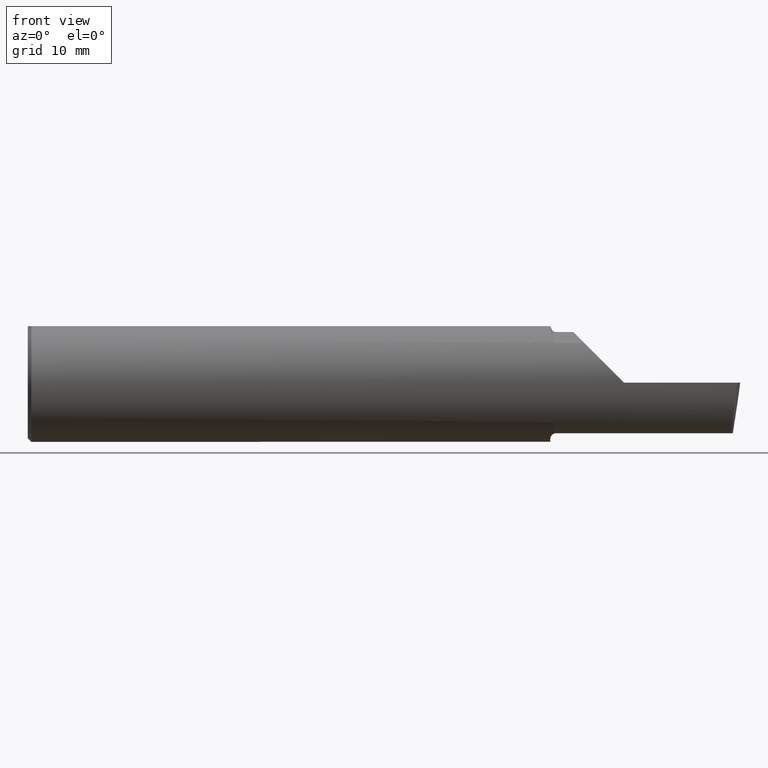
[diagram: clean part render]
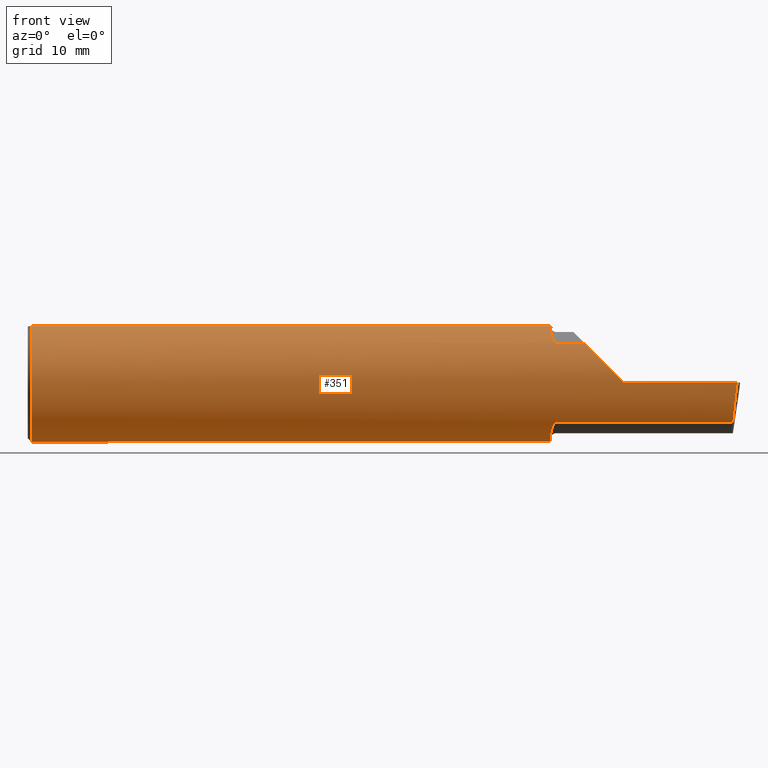
[diagram: same view with one face highlighted and labeled with its STEP entity id]
A machine part, front view. The second image highlights one B-rep face of the part: STEP entity #351.
In plain terms, the highlighted cylindrical surface (partial cylindrical patch) has radius 6.3462 mm, axis along (-1, -0, -0).
Its self-contained STEP definition (entity closure, byte-faithful):
#7 = CARTESIAN_POINT ( 'NONE',  ( 2.200000000000000178, 0.07650098038587503646, 0.2378500000000000059 ) ) ;
#11 = CARTESIAN_POINT ( 'NONE',  ( 2.200000000000000178, -0.07650098038590467941, 0.2378500000000000059 ) ) ;
#12 = CARTESIAN_POINT ( 'NONE',  ( 2.207341173198634543, -0.1582250006961558320, -0.1936724403215128454 ) ) ;
#16 = VERTEX_POINT ( 'NONE', #105 ) ;
#19 = CARTESIAN_POINT ( 'NONE',  ( 2.220138573936400128, -0.1849738682364328035, -0.1679602226613253479 ) ) ;
#32 = AXIS2_PLACEMENT_3D ( 'NONE', #425, #54, #482 ) ;
#37 = CARTESIAN_POINT ( 'NONE',  ( 2.207343635746627175, -0.1582230848692695868, 0.1936715022401950259 ) ) ;
#39 = ORIENTED_EDGE ( 'NONE', *, *, #406, .F. ) ;
#41 = EDGE_CURVE ( 'NONE', #536, #362, #762, .T. ) ;
#52 = CARTESIAN_POINT ( 'NONE',  ( 2.225000000000000089, -0.1868028301886793530, -0.1659208399614086893 ) ) ;
#54 = DIRECTION ( 'NONE',  ( 1.000000000000000000, 0.0000000000000000000, 0.0000000000000000000 ) ) ;
#55 = ORIENTED_EDGE ( 'NONE', *, *, #717, .F. ) ;
#60 = CARTESIAN_POINT ( 'NONE',  ( 2.200000000000000178, -0.08036415094339657839, 0.2365726648265749632 ) ) ;
#70 = VERTEX_POINT ( 'NONE', #359 ) ;
#74 = EDGE_CURVE ( 'NONE', #628, #114, #247, .T. ) ;
#78 = CARTESIAN_POINT ( 'NONE',  ( 2.201227564404962589, -0.1217005943024293546, -0.2193523119135138422 ) ) ;
#81 = CARTESIAN_POINT ( 'NONE',  ( 0.01499999999999999771, 0.07650098038587500870, 0.2378499999999999226 ) ) ;
#82 = CARTESIAN_POINT ( 'NONE',  ( 2.215875558094659414, -0.1799506819598038487, -0.1733486322212181296 ) ) ;
#85 = VECTOR ( 'NONE', #230, 39.37007874015748143 ) ;
#87 = ORIENTED_EDGE ( 'NONE', *, *, #241, .T. ) ;
#95 = ORIENTED_EDGE ( 'NONE', *, *, #203, .F. ) ;
#97 = CARTESIAN_POINT ( 'NONE',  ( 2.225000000000000089, -0.1868028301886792142, 0.1659208399614088003 ) ) ;
#98 = B_SPLINE_CURVE_WITH_KNOTS ( 'NONE', 3,
 ( #162, #287, #691, #348, #749, #412, #37, #466, #102, #522, #164, #590, #223, #636, #290, #698 ),
 .UNSPECIFIED., .F., .F.,
 ( 4, 2, 2, 2, 2, 2, 2, 4 ),
 ( 0.0001034694911878116782, 0.0009591263138367388556, 0.001814783136485666019, 0.002670439959134593075, 0.003098268370459054868, 0.003312182576121287716, 0.003419139678952397635, 0.003526096781783507987 ),
 .UNSPECIFIED. ) ;
#99 = CARTESIAN_POINT ( 'NONE',  ( 0.01499999999999999771, 0.0000000000000000000, 0.0000000000000000000 ) ) ;
#101 = CARTESIAN_POINT ( 'NONE',  ( 2.510000000000000231, -0.2498499999999999610, 6.000769315822035917E-17 ) ) ;
#102 = CARTESIAN_POINT ( 'NONE',  ( 2.212758562425229947, -0.1743135686468865742, 0.1790760091940043208 ) ) ;
#105 = CARTESIAN_POINT ( 'NONE',  ( 0.01499999999998188026, -0.07650098038590467941, 0.2378500000000000059 ) ) ;
#114 = VERTEX_POINT ( 'NONE', #301 ) ;
#115 = EDGE_CURVE ( 'NONE', #389, #705, #678, .T. ) ;
#127 = AXIS2_PLACEMENT_3D ( 'NONE', #201, #575, #209 ) ;
#129 = CIRCLE ( 'NONE', #127, 0.2498499999999999888 ) ;
#139 = CARTESIAN_POINT ( 'NONE',  ( 0.0000000000000000000, -0.07650098038587496707, 0.2378499999999999226 ) ) ;
#140 = CARTESIAN_POINT ( 'NONE',  ( 2.222232603162240139, -0.1862758070845873526, -0.1665151405181427013 ) ) ;
#141 = CARTESIAN_POINT ( 'NONE',  ( 2.212797058507744996, -0.1743943839926586914, -0.1789958554125698764 ) ) ;
#147 = VECTOR ( 'NONE', #551, 39.37007874015748143 ) ;
#152 = LINE ( 'NONE', #139, #303 ) ;
#156 = ORIENTED_EDGE ( 'NONE', *, *, #74, .F. ) ;
#161 = DIRECTION ( 'NONE',  ( 0.0000000000000000000, 0.0000000000000000000, 1.000000000000000000 ) ) ;
#162 = CARTESIAN_POINT ( 'NONE',  ( 2.200000000000000178, -0.08036415094339657839, 0.2365726648265749632 ) ) ;
#164 = CARTESIAN_POINT ( 'NONE',  ( 2.217018584423771976, -0.1817363555988614210, 0.1714722504633805766 ) ) ;
#177 = AXIS2_PLACEMENT_3D ( 'NONE', #99, #516, #161 ) ;
#178 = EDGE_LOOP ( 'NONE', ( #55, #605, #275, #497, #156, #566, #525, #87, #39, #398, #688, #460, #95 ) ) ;
#181 = CARTESIAN_POINT ( 'NONE',  ( 2.510000000000000231, -0.2498499999999999610, 6.000769315822035917E-17 ) ) ;
#188 = CIRCLE ( 'NONE', #177, 0.2498499999999999888 ) ;
#197 = EDGE_CURVE ( 'NONE', #70, #439, #626, .T. ) ;
#199 = EDGE_CURVE ( 'NONE', #664, #70, #730, .T. ) ;
#201 = CARTESIAN_POINT ( 'NONE',  ( 0.01499999999999999771, 0.0000000000000000000, 0.0000000000000000000 ) ) ;
#203 = EDGE_CURVE ( 'NONE', #502, #536, #695, .T. ) ;
#208 = CARTESIAN_POINT ( 'NONE',  ( 2.199999999999990408, -0.1016924291521889567, -0.2293274111511741375 ) ) ;
#209 = DIRECTION ( 'NONE',  ( 0.0000000000000000000, 0.0000000000000000000, 1.000000000000000000 ) ) ;
#219 = CARTESIAN_POINT ( 'NONE',  ( 2.968492717492762889, -0.1868028301886794917, -0.1659208399614086338 ) ) ;
#223 = CARTESIAN_POINT ( 'NONE',  ( 2.220144309637440472, -0.1849788583324331048, 0.1679547276881069029 ) ) ;
#230 = DIRECTION ( 'NONE',  ( 1.000000000000000000, 0.0000000000000000000, 0.0000000000000000000 ) ) ;
#241 = EDGE_CURVE ( 'NONE', #389, #16, #152, .T. ) ;
#244 = VERTEX_POINT ( 'NONE', #81 ) ;
#247 = LINE ( 'NONE', #754, #85 ) ;
#254 = DIRECTION ( 'NONE',  ( -1.000000000000000000, -0.0000000000000000000, -0.0000000000000000000 ) ) ;
#256 = LINE ( 'NONE', #702, #147 ) ;
#259 = AXIS2_PLACEMENT_3D ( 'NONE', #432, #254, #663 ) ;
#266 = CARTESIAN_POINT ( 'NONE',  ( 2.987221270274242446, -0.2498499999999999888, -6.495015745097940340E-17 ) ) ;
#275 = ORIENTED_EDGE ( 'NONE', *, *, #197, .T. ) ;
#287 = CARTESIAN_POINT ( 'NONE',  ( 2.199999999999999734, -0.09104204635388178646, 0.2329453649474654831 ) ) ;
#290 = CARTESIAN_POINT ( 'NONE',  ( 2.223548866468135543, -0.1868028301907316557, 0.1659208399590982042 ) ) ;
#293 = DIRECTION ( 'NONE',  ( 1.000000000000000000, 0.0000000000000000000, 0.0000000000000000000 ) ) ;
#301 = CARTESIAN_POINT ( 'NONE',  ( 2.344079160038586185, -0.1868028301886760500, 0.1659208399614119644 ) ) ;
#303 = VECTOR ( 'NONE', #673, 39.37007874015748143 ) ;
#310 = CARTESIAN_POINT ( 'NONE',  ( 2.344079160038586185, -0.1868028301886760500, 0.1659208399614119644 ) ) ;
#316 = LINE ( 'NONE', #457, #758 ) ;
#323 = EDGE_CURVE ( 'NONE', #439, #114, #648, .T. ) ;
#348 = CARTESIAN_POINT ( 'NONE',  ( 2.201680550596498698, -0.1214972057705729497, 0.2186080375779522744 ) ) ;
#351 = ADVANCED_FACE ( 'NONE', ( #677 ), #374, .T. ) ;
#359 = CARTESIAN_POINT ( 'NONE',  ( 2.987221270274242446, -0.2498499999999999888, -6.495015745097940340E-17 ) ) ;
#362 = VERTEX_POINT ( 'NONE', #7 ) ;
#371 = CARTESIAN_POINT ( 'NONE',  ( 2.448145753305722927, -0.2498500000000000165, 0.06185424669427665861 ) ) ;
#374 = CYLINDRICAL_SURFACE ( 'NONE', #259, 0.2498499999999999888 ) ;
#386 = VERTEX_POINT ( 'NONE', #559 ) ;
#389 = VERTEX_POINT ( 'NONE', #11 ) ;
#392 = CARTESIAN_POINT ( 'NONE',  ( 2.973097331270539989, -0.2278791102234774824, -0.1196748990301325366 ) ) ;
#396 = CARTESIAN_POINT ( 'NONE',  ( 2.211285743882607679, -0.1704402150608115285, -0.1827701868778697503 ) ) ;
#398 = ORIENTED_EDGE ( 'NONE', *, *, #515, .F. ) ;
#399 = CARTESIAN_POINT ( 'NONE',  ( 2.200000000000000178, -0.08036415094339657839, -0.2365726648265749632 ) ) ;
#401 = DIRECTION ( 'NONE',  ( 1.000000000000000000, 0.0000000000000000000, 0.0000000000000000000 ) ) ;
#406 = EDGE_CURVE ( 'NONE', #386, #16, #188, .T. ) ;
#412 = CARTESIAN_POINT ( 'NONE',  ( 2.205553274544308717, -0.1495649063853947414, 0.2004446339470383753 ) ) ;
#425 = CARTESIAN_POINT ( 'NONE',  ( 2.200000000000000178, 0.0000000000000000000, 0.0000000000000000000 ) ) ;
#432 = CARTESIAN_POINT ( 'NONE',  ( 0.0000000000000000000, 0.0000000000000000000, 0.0000000000000000000 ) ) ;
#439 = VERTEX_POINT ( 'NONE', #101 ) ;
#444 = CARTESIAN_POINT ( 'NONE',  ( 2.205537042546466875, -0.1495003888704984629, -0.2004994225712675993 ) ) ;
#446 = CARTESIAN_POINT ( 'NONE',  ( 2.217016733372314086, -0.1817333077058767288, -0.1714754572696065016 ) ) ;
#448 = CARTESIAN_POINT ( 'NONE',  ( 2.219285582744838781, -0.1841881072713807965, -0.1688230283719351632 ) ) ;
#457 = CARTESIAN_POINT ( 'NONE',  ( 0.0000000000000000000, 0.07650098038587500870, 0.2378499999999999226 ) ) ;
#460 = ORIENTED_EDGE ( 'NONE', *, *, #41, .F. ) ;
#466 = CARTESIAN_POINT ( 'NONE',  ( 2.211268146151109004, -0.1703904609315278207, 0.1828159088808246069 ) ) ;
#478 = VECTOR ( 'NONE', #570, 39.37007874015748143 ) ;
#482 = DIRECTION ( 'NONE',  ( 0.0000000000000000000, 0.0000000000000000000, -1.000000000000000000 ) ) ;
#497 = ORIENTED_EDGE ( 'NONE', *, *, #323, .T. ) ;
#502 = VERTEX_POINT ( 'NONE', #52 ) ;
#506 = CARTESIAN_POINT ( 'NONE',  ( 2.225000000000000089, -0.1868028301886793530, -0.1659208399614086893 ) ) ;
#514 = AXIS2_PLACEMENT_3D ( 'NONE', #643, #293, #706 ) ;
#515 = EDGE_CURVE ( 'NONE', #244, #386, #129, .T. ) ;
#516 = DIRECTION ( 'NONE',  ( -1.000000000000000000, -0.0000000000000000000, -0.0000000000000000000 ) ) ;
#522 = CARTESIAN_POINT ( 'NONE',  ( 2.215857071685140678, -0.1799228808997977713, 0.1733778622677450976 ) ) ;
#525 = ORIENTED_EDGE ( 'NONE', *, *, #115, .F. ) ;
#536 = VERTEX_POINT ( 'NONE', #399 ) ;
#551 = DIRECTION ( 'NONE',  ( -1.000000000000000000, -0.0000000000000000000, -0.0000000000000000000 ) ) ;
#559 = CARTESIAN_POINT ( 'NONE',  ( 0.01499999999999999771, 0.0000000000000000000, -0.2498499999999999888 ) ) ;
#565 = EDGE_CURVE ( 'NONE', #244, #362, #316, .T. ) ;
#566 = ORIENTED_EDGE ( 'NONE', *, *, #649, .F. ) ;
#568 = CARTESIAN_POINT ( 'NONE',  ( 2.223547768521294099, -0.1868028301886791864, -0.1659208399614090779 ) ) ;
#570 = DIRECTION ( 'NONE',  ( -1.000000000000000000, -0.0000000000000000000, -0.0000000000000000000 ) ) ;
#572 = CARTESIAN_POINT ( 'NONE',  ( 2.200000000000000178, -0.08036415094339657839, -0.2365726648265749632 ) ) ;
#575 = DIRECTION ( 'NONE',  ( -1.000000000000000000, -0.0000000000000000000, -0.0000000000000000000 ) ) ;
#590 = CARTESIAN_POINT ( 'NONE',  ( 2.219290397284157557, -0.1841927918507048623, 0.1688179232533559004 ) ) ;
#605 = ORIENTED_EDGE ( 'NONE', *, *, #199, .T. ) ;
#617 = CARTESIAN_POINT ( 'NONE',  ( 1.878049121262586821E-31, -0.2498499999999999610, 7.172378389328440442E-16 ) ) ;
#626 = LINE ( 'NONE', #617, #478 ) ;
#628 = VERTEX_POINT ( 'NONE', #97 ) ;
#636 = CARTESIAN_POINT ( 'NONE',  ( 2.222243150415550872, -0.1862809296394745961, 0.1665094106511990635 ) ) ;
#643 = CARTESIAN_POINT ( 'NONE',  ( 2.200000000000000178, 0.0000000000000000000, 0.0000000000000000000 ) ) ;
#648 =( BOUNDED_CURVE ( )  B_SPLINE_CURVE ( 3, ( #181, #371, #657, #310 ),
 .UNSPECIFIED., .F., .T. ) 
 B_SPLINE_CURVE_WITH_KNOTS ( ( 4, 4 ),
 ( 4.712388980384689674, 5.438654041019590935 ),
 .UNSPECIFIED. ) 
 CURVE ( )  GEOMETRIC_REPRESENTATION_ITEM ( )  RATIONAL_B_SPLINE_CURVE ( ( 1.000000000000000000, 0.9565258159410974237, 0.9565258159410974237, 1.000000000000000000 ) ) 
 REPRESENTATION_ITEM ( '' )  );
#649 = EDGE_CURVE ( 'NONE', #705, #628, #98, .T. ) ;
#657 = CARTESIAN_POINT ( 'NONE',  ( 2.390325100969863392, -0.2278791102234763166, 0.1196748990301357285 ) ) ;
#663 = DIRECTION ( 'NONE',  ( 0.0000000000000000000, 0.0000000000000000000, 1.000000000000000000 ) ) ;
#664 = VERTEX_POINT ( 'NONE', #219 ) ;
#671 = CARTESIAN_POINT ( 'NONE',  ( 2.979623920331827769, -0.2498500000000000443, -0.06185424669427492389 ) ) ;
#673 = DIRECTION ( 'NONE',  ( -1.000000000000000000, -0.0000000000000000000, -0.0000000000000000000 ) ) ;
#677 = FACE_OUTER_BOUND ( 'NONE', #178, .T. ) ;
#678 = CIRCLE ( 'NONE', #32, 0.2498499999999999888 ) ;
#688 = ORIENTED_EDGE ( 'NONE', *, *, #565, .T. ) ;
#691 = CARTESIAN_POINT ( 'NONE',  ( 2.200332084145229405, -0.1014027185340446724, 0.2286231260779312824 ) ) ;
#695 = B_SPLINE_CURVE_WITH_KNOTS ( 'NONE', 3,
 ( #506, #568, #140, #19, #448, #446, #82, #141, #396, #12, #444, #78, #208, #572 ),
 .UNSPECIFIED., .F., .F.,
 ( 4, 2, 2, 2, 2, 2, 4 ),
 ( 1.967619685288262155E-07, 0.0001090840123077893239, 0.0002179712626470498244, 0.0004357457633255836459, 0.0008712947646826492290, 0.001742392767396784082, 0.003484588772825052052 ),
 .UNSPECIFIED. ) ;
#698 = CARTESIAN_POINT ( 'NONE',  ( 2.225000000000000089, -0.1868028301886792142, 0.1659208399614088003 ) ) ;
#702 = CARTESIAN_POINT ( 'NONE',  ( 2.385000000000000231, -0.1868028301886794917, -0.1659208399614086338 ) ) ;
#705 = VERTEX_POINT ( 'NONE', #60 ) ;
#706 = DIRECTION ( 'NONE',  ( 0.0000000000000000000, 0.0000000000000000000, -1.000000000000000000 ) ) ;
#717 = EDGE_CURVE ( 'NONE', #664, #502, #256, .T. ) ;
#730 =( BOUNDED_CURVE ( )  B_SPLINE_CURVE ( 3, ( #733, #392, #671, #266 ),
 .UNSPECIFIED., .F., .T. ) 
 B_SPLINE_CURVE_WITH_KNOTS ( ( 4, 4 ),
 ( 0.6344818218798460308, 1.360746882514727307 ),
 .UNSPECIFIED. ) 
 CURVE ( )  GEOMETRIC_REPRESENTATION_ITEM ( )  RATIONAL_B_SPLINE_CURVE ( ( 1.000000000000000000, 0.9565258159410997552, 0.9565258159410997552, 1.000000000000000000 ) ) 
 REPRESENTATION_ITEM ( '' )  );
#733 = CARTESIAN_POINT ( 'NONE',  ( 2.968492717492762889, -0.1868028301886794917, -0.1659208399614086338 ) ) ;
#749 = CARTESIAN_POINT ( 'NONE',  ( 2.202700302592143000, -0.1312404656039925233, 0.2128935242986065290 ) ) ;
#754 = CARTESIAN_POINT ( 'NONE',  ( 2.385000000000000231, -0.1868028301886794917, 0.1659208399614086338 ) ) ;
#758 = VECTOR ( 'NONE', #401, 39.37007874015748143 ) ;
#762 = CIRCLE ( 'NONE', #514, 0.2498499999999999888 ) ;